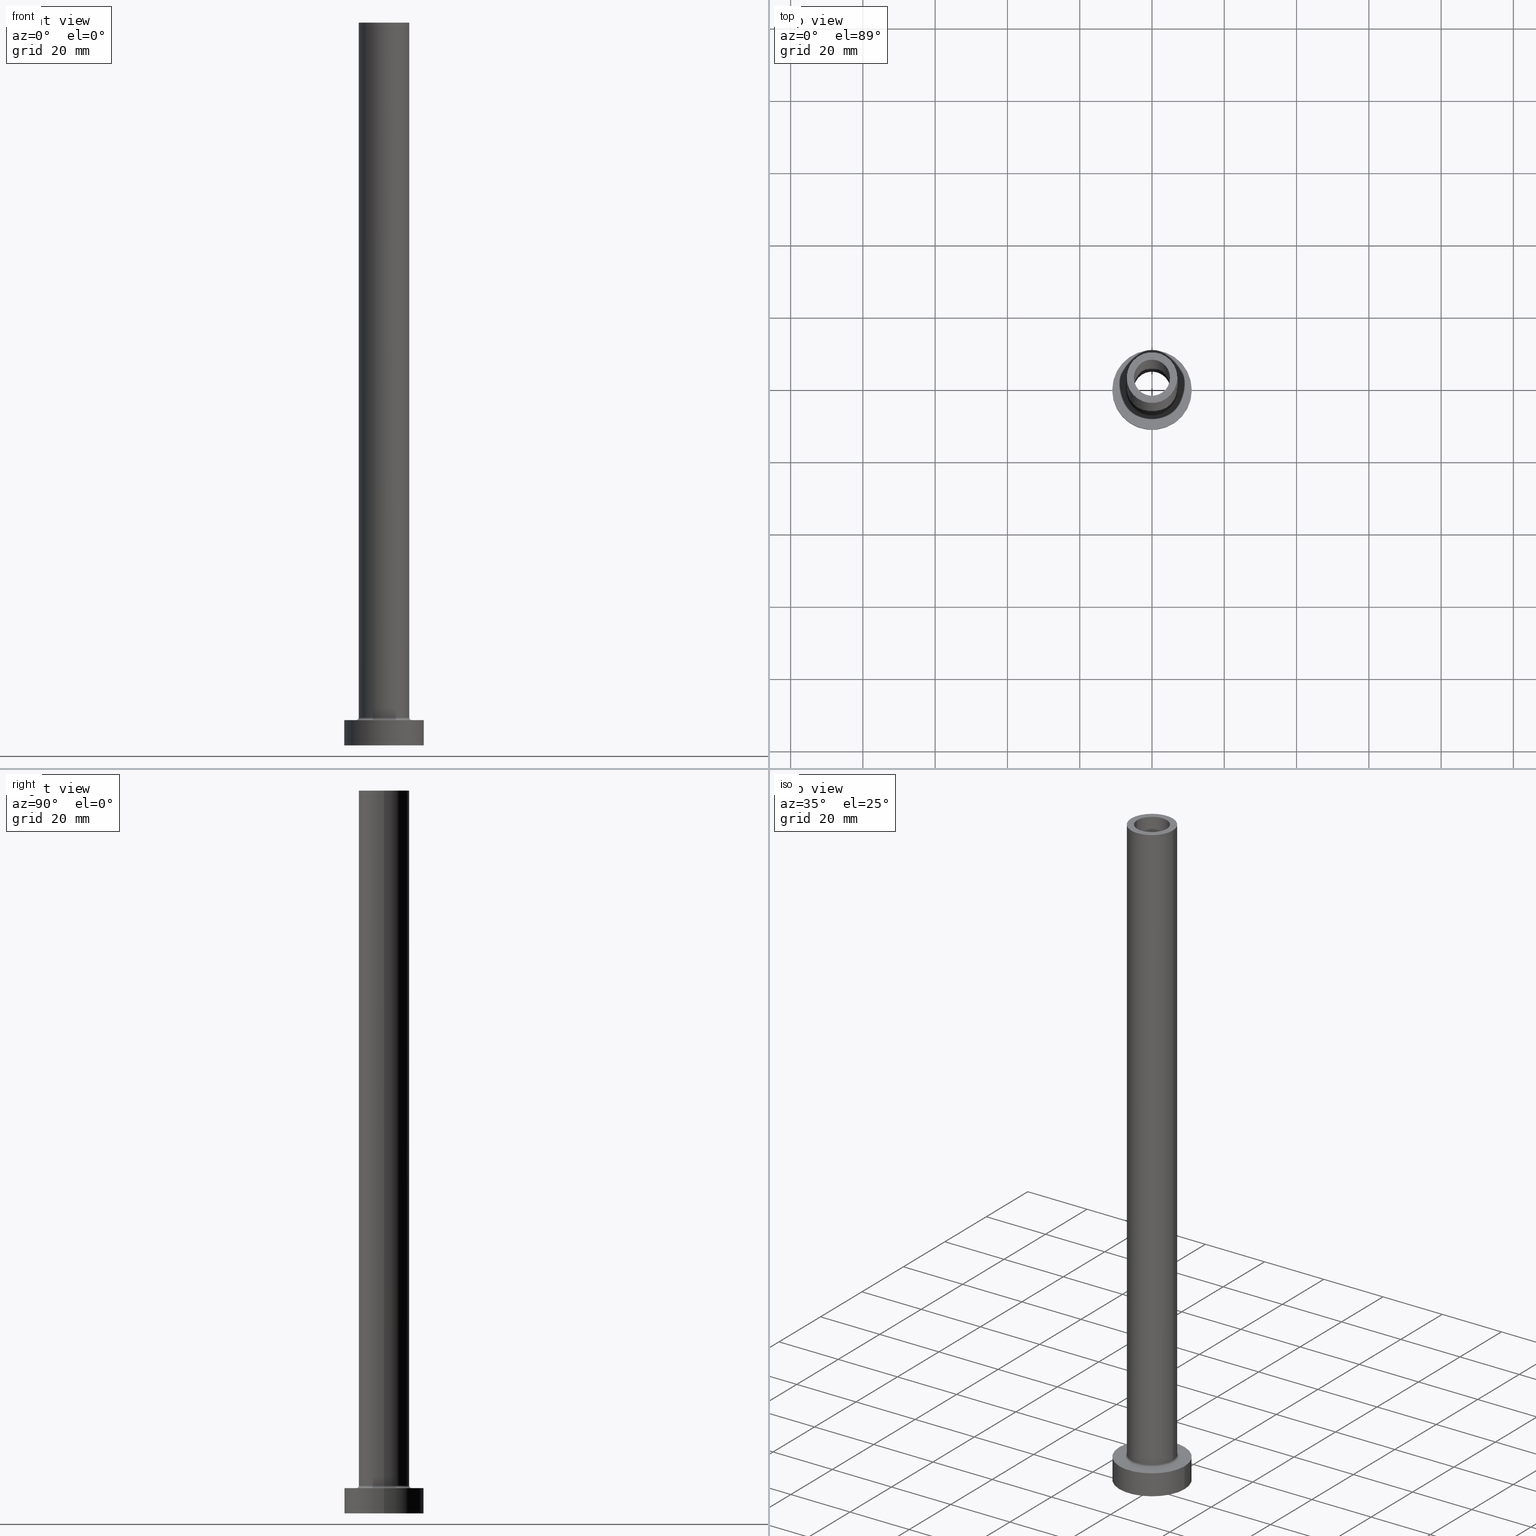
[diagram: canonical four-view strip — front | top / right | iso, engineering-drawing reading convention]
A machine part, canonical four-view strip (front | top / right | iso — engineering-drawing reading convention). The complete STEP part file that produces these views, byte-faithful:
ISO-10303-21;
HEADER;
FILE_DESCRIPTION (( 'STEP AP203' ),
    '1' );
FILE_NAME ('37e6.STEP',
    '2023-02-13T07:43:35',
    ( '' ),
    ( '' ),
    'SwSTEP 2.0',
    'SolidWorks 2019',
    '' );
FILE_SCHEMA (( 'CONFIG_CONTROL_DESIGN' ));
ENDSEC;

DATA;
#1 = CC_DESIGN_APPROVAL ( #280, ( #133 ) ) ;
#2 = CARTESIAN_POINT ( 'NONE',  ( -5.000000000000000000, 0.000000000000000000, 155.0000000000000284 ) ) ;
#3 = VERTEX_POINT ( 'NONE', #230 ) ;
#4 = DIRECTION ( 'NONE',  ( 0.000000000000000000, 0.000000000000000000, -1.000000000000000000 ) ) ;
#5 = VERTEX_POINT ( 'NONE', #276 ) ;
#6 = DIRECTION ( 'NONE',  ( -1.000000000000000000, 0.000000000000000000, 0.000000000000000000 ) ) ;
#7 = ORIENTED_EDGE ( 'NONE', *, *, #35, .T. ) ;
#8 = AXIS2_PLACEMENT_3D ( 'NONE', #14, #260, #446 ) ;
#9 = VERTEX_POINT ( 'NONE', #272 ) ;
#10 = CIRCLE ( 'NONE', #163, 11.00000000000000000 ) ;
#11 = DIRECTION ( 'NONE',  ( 1.000000000000000000, 0.000000000000000000, 0.000000000000000000 ) ) ;
#12 = DIRECTION ( 'NONE',  ( 1.224646799147353207E-16, 1.000000000000000000, -0.000000000000000000 ) ) ;
#13 = ADVANCED_FACE ( 'NONE', ( #86, #377 ), #87, .T. ) ;
#14 = CARTESIAN_POINT ( 'NONE',  ( 0.000000000000000000, 0.000000000000000000, 7.000000000000000000 ) ) ;
#15 = CARTESIAN_POINT ( 'NONE',  ( -5.150000000000001243, 0.000000000000000000, 155.0000000000000284 ) ) ;
#16 = AXIS2_PLACEMENT_3D ( 'NONE', #263, #78, #215 ) ;
#17 = CIRCLE ( 'NONE', #227, 5.150000000000001243 ) ;
#18 = VERTEX_POINT ( 'NONE', #232 ) ;
#19 = FACE_BOUND ( 'NONE', #244, .T. ) ;
#20 = EDGE_CURVE ( 'NONE', #337, #400, #21, .T. ) ;
#21 = LINE ( 'NONE', #312, #214 ) ;
#22 = DIRECTION ( 'NONE',  ( 1.000000000000000000, 0.000000000000000000, -0.000000000000000000 ) ) ;
#23 = CIRCLE ( 'NONE', #80, 0.7000000000000000666 ) ;
#24 = ORIENTED_EDGE ( 'NONE', *, *, #228, .T. ) ;
#25 = AXIS2_PLACEMENT_3D ( 'NONE', #150, #405, #307 ) ;
#26 = CARTESIAN_POINT ( 'NONE',  ( 5.000000000000000000, 6.123233995736765296E-16, 200.0000000000000000 ) ) ;
#27 = EDGE_CURVE ( 'NONE', #100, #3, #23, .T. ) ;
#28 = PERSON_AND_ORGANIZATION ( #248, #309 ) ;
#29 = ORIENTED_EDGE ( 'NONE', *, *, #188, .T. ) ;
#30 = DIRECTION ( 'NONE',  ( -0.000000000000000000, -0.000000000000000000, -1.000000000000000000 ) ) ;
#31 = VECTOR ( 'NONE', #204, 1000.000000000000000 ) ;
#32 = APPROVAL_ROLE ( '' ) ;
#33 = ORIENTED_EDGE ( 'NONE', *, *, #261, .T. ) ;
#34 = DIRECTION ( 'NONE',  ( 0.000000000000000000, 0.000000000000000000, -1.000000000000000000 ) ) ;
#35 = EDGE_CURVE ( 'NONE', #106, #18, #225, .T. ) ;
#36 = CALENDAR_DATE ( 2023, 13, 2 ) ;
#37 = DIRECTION ( 'NONE',  ( 1.000000000000000000, 0.000000000000000000, 0.000000000000000000 ) ) ;
#38 = COORDINATED_UNIVERSAL_TIME_OFFSET ( 1, 0, .AHEAD. ) ;
#39 = AXIS2_PLACEMENT_3D ( 'NONE', #388, #247, #4 ) ;
#40 = ORIENTED_EDGE ( 'NONE', *, *, #412, .F. ) ;
#41 = ORIENTED_EDGE ( 'NONE', *, *, #211, .F. ) ;
#42 = EDGE_LOOP ( 'NONE', ( #122, #198 ) ) ;
#43 = AXIS2_PLACEMENT_3D ( 'NONE', #311, #83, #340 ) ;
#44 = ADVANCED_FACE ( 'NONE', ( #369 ), #409, .T. ) ;
#45 = DIRECTION ( 'NONE',  ( 1.000000000000000000, 0.000000000000000000, 0.000000000000000000 ) ) ;
#46 = FACE_OUTER_BOUND ( 'NONE', #324, .T. ) ;
#47 = ORIENTED_EDGE ( 'NONE', *, *, #94, .F. ) ;
#48 = AXIS2_PLACEMENT_3D ( 'NONE', #242, #231, #197 ) ;
#49 = ORIENTED_EDGE ( 'NONE', *, *, #162, .T. ) ;
#50 = DIRECTION ( 'NONE',  ( 0.000000000000000000, 0.000000000000000000, 1.000000000000000000 ) ) ;
#51 = ORIENTED_EDGE ( 'NONE', *, *, #162, .F. ) ;
#52 =( NAMED_UNIT ( * ) SI_UNIT ( $, .STERADIAN. ) SOLID_ANGLE_UNIT ( ) );
#53 = EDGE_LOOP ( 'NONE', ( #51, #117 ) ) ;
#54 = CIRCLE ( 'NONE', #209, 7.000000000000000888 ) ;
#55 = DIRECTION ( 'NONE',  ( 1.000000000000000000, 0.000000000000000000, 0.000000000000000000 ) ) ;
#56 = PRODUCT_DEFINITION ( 'NEZN�M�', '', #133, #89 ) ;
#57 = FACE_OUTER_BOUND ( 'NONE', #216, .T. ) ;
#58 = UNCERTAINTY_MEASURE_WITH_UNIT (LENGTH_MEASURE( 1.000000000000000082E-05 ), #192, 'distance_accuracy_value', 'NONE');
#59 = ORIENTED_EDGE ( 'NONE', *, *, #63, .F. ) ;
#60 = AXIS2_PLACEMENT_3D ( 'NONE', #407, #76, #153 ) ;
#61 = DATE_AND_TIME ( #320, #401 ) ;
#62 = CARTESIAN_POINT ( 'NONE',  ( 0.000000000000000000, 0.000000000000000000, 0.000000000000000000 ) ) ;
#63 = EDGE_CURVE ( 'NONE', #385, #159, #317, .T. ) ;
#64 = AXIS2_PLACEMENT_3D ( 'NONE', #102, #267, #152 ) ;
#65 = CARTESIAN_POINT ( 'NONE',  ( 0.000000000000000000, 0.000000000000000000, 200.0000000000000000 ) ) ;
#66 = CALENDAR_DATE ( 2023, 13, 2 ) ;
#67 = ORIENTED_EDGE ( 'NONE', *, *, #348, .T. ) ;
#68 = DATE_TIME_ROLE ( 'classification_date' ) ;
#69 = LOCAL_TIME ( 8, 43, 35.00000000000000000, #266 ) ;
#70 = EDGE_CURVE ( 'NONE', #159, #385, #165, .T. ) ;
#71 = ORIENTED_EDGE ( 'NONE', *, *, #193, .F. ) ;
#72 = EDGE_LOOP ( 'NONE', ( #108, #41 ) ) ;
#73 = ORIENTED_EDGE ( 'NONE', *, *, #35, .F. ) ;
#74 = CARTESIAN_POINT ( 'NONE',  ( 0.000000000000000000, 0.000000000000000000, 7.700000000000012612 ) ) ;
#75 = CIRCLE ( 'NONE', #245, 5.150000000000001243 ) ;
#76 = DIRECTION ( 'NONE',  ( 0.000000000000000000, 0.000000000000000000, -1.000000000000000000 ) ) ;
#77 = DIRECTION ( 'NONE',  ( 1.000000000000000000, 0.000000000000000000, 0.000000000000000000 ) ) ;
#78 = DIRECTION ( 'NONE',  ( 0.000000000000000000, 0.000000000000000000, -1.000000000000000000 ) ) ;
#79 = PRODUCT_RELATED_PRODUCT_CATEGORY ( 'detail', '', ( #391 ) ) ;
#80 = AXIS2_PLACEMENT_3D ( 'NONE', #120, #12, #442 ) ;
#81 = DIRECTION ( 'NONE',  ( 1.000000000000000000, 0.000000000000000000, 0.000000000000000000 ) ) ;
#82 = ORIENTED_EDGE ( 'NONE', *, *, #88, .T. ) ;
#83 = DIRECTION ( 'NONE',  ( 0.000000000000000000, 0.000000000000000000, 1.000000000000000000 ) ) ;
#84 = CIRCLE ( 'NONE', #459, 5.000000000000000000 ) ;
#85 = CYLINDRICAL_SURFACE ( 'NONE', #111, 11.00000000000000000 ) ;
#86 = FACE_BOUND ( 'NONE', #241, .T. ) ;
#87 = PLANE ( 'NONE',  #306 ) ;
#88 = EDGE_CURVE ( 'NONE', #159, #249, #158, .T. ) ;
#89 = DESIGN_CONTEXT ( 'detailed design', #433, 'design' ) ;
#90 = APPLICATION_CONTEXT ( 'configuration controlled 3d designs of mechanical parts and assemblies' ) ;
#91 = DIRECTION ( 'NONE',  ( -0.000000000000000000, -0.000000000000000000, -1.000000000000000000 ) ) ;
#92 = VECTOR ( 'NONE', #297, 1000.000000000000000 ) ;
#93 = COORDINATED_UNIVERSAL_TIME_OFFSET ( 1, 0, .AHEAD. ) ;
#94 = EDGE_CURVE ( 'NONE', #126, #106, #414, .T. ) ;
#95 = DATE_AND_TIME ( #390, #283 ) ;
#96 = DIRECTION ( 'NONE',  ( 1.000000000000000000, 0.000000000000000000, 0.000000000000000000 ) ) ;
#97 = CYLINDRICAL_SURFACE ( 'NONE', #114, 5.150000000000001243 ) ;
#98 = CIRCLE ( 'NONE', #202, 5.000000000000000000 ) ;
#99 = CARTESIAN_POINT ( 'NONE',  ( 0.000000000000000000, 0.000000000000000000, 200.0000000000000000 ) ) ;
#100 = VERTEX_POINT ( 'NONE', #119 ) ;
#101 = APPROVAL_DATE_TIME ( #286, #299 ) ;
#102 = CARTESIAN_POINT ( 'NONE',  ( 0.000000000000000000, 0.000000000000000000, 0.000000000000000000 ) ) ;
#103 = EDGE_LOOP ( 'NONE', ( #257, #167, #82, #454 ) ) ;
#104 = AXIS2_PLACEMENT_3D ( 'NONE', #62, #341, #22 ) ;
#105 = CIRCLE ( 'NONE', #39, 0.7000000000000000666 ) ;
#106 = VERTEX_POINT ( 'NONE', #271 ) ;
#107 = DIRECTION ( 'NONE',  ( 1.000000000000000000, 0.000000000000000000, 0.000000000000000000 ) ) ;
#108 = ORIENTED_EDGE ( 'NONE', *, *, #269, .F. ) ;
#109 = ADVANCED_FACE ( 'NONE', ( #46 ), #85, .T. ) ;
#110 = FACE_OUTER_BOUND ( 'NONE', #103, .T. ) ;
#111 = AXIS2_PLACEMENT_3D ( 'NONE', #186, #371, #229 ) ;
#112 = DIRECTION ( 'NONE',  ( 0.000000000000000000, 0.000000000000000000, 1.000000000000000000 ) ) ;
#113 = CARTESIAN_POINT ( 'NONE',  ( 0.000000000000000000, 0.000000000000000000, 155.0000000000000284 ) ) ;
#114 = AXIS2_PLACEMENT_3D ( 'NONE', #355, #34, #6 ) ;
#115 = CARTESIAN_POINT ( 'NONE',  ( 0.000000000000000000, 0.000000000000000000, 7.000000000000000000 ) ) ;
#116 = DIRECTION ( 'NONE',  ( -1.000000000000000000, 0.000000000000000000, 0.000000000000000000 ) ) ;
#117 = ORIENTED_EDGE ( 'NONE', *, *, #188, .F. ) ;
#118 = ADVANCED_FACE ( 'NONE', ( #110 ), #258, .F. ) ;
#119 = CARTESIAN_POINT ( 'NONE',  ( -7.000000000000000888, 0.000000000000000000, 7.700000000000012612 ) ) ;
#120 = CARTESIAN_POINT ( 'NONE',  ( -7.700000000000001066, 9.429780353434621002E-16, 7.700000000000012612 ) ) ;
#121 = AXIS2_PLACEMENT_3D ( 'NONE', #99, #240, #175 ) ;
#122 = ORIENTED_EDGE ( 'NONE', *, *, #449, .F. ) ;
#123 = DIRECTION ( 'NONE',  ( -0.000000000000000000, -0.000000000000000000, -1.000000000000000000 ) ) ;
#124 = ADVANCED_FACE ( 'NONE', ( #221 ), #270, .F. ) ;
#125 = CARTESIAN_POINT ( 'NONE',  ( 5.150000000000001243, 6.306931015608869596E-16, 0.000000000000000000 ) ) ;
#126 = VERTEX_POINT ( 'NONE', #410 ) ;
#127 = AXIS2_PLACEMENT_3D ( 'NONE', #235, #275, #383 ) ;
#128 = CC_DESIGN_SECURITY_CLASSIFICATION ( #423, ( #133 ) ) ;
#129 = APPROVAL ( #243, 'NEUR�EN�' ) ;
#130 = APPLICATION_PROTOCOL_DEFINITION ( 'international standard', 'config_control_design', 1994, #433 ) ;
#131 = PERSON_AND_ORGANIZATION_ROLE ( 'design_supplier' ) ;
#132 = FACE_OUTER_BOUND ( 'NONE', #284, .T. ) ;
#133 = PRODUCT_DEFINITION_FORMATION_WITH_SPECIFIED_SOURCE ( 'LIBOVOLN�', '', #391, .NOT_KNOWN. ) ;
#134 = MECHANICAL_CONTEXT ( 'NONE', #90, 'mechanical' ) ;
#135 = VERTEX_POINT ( 'NONE', #455 ) ;
#136 = ADVANCED_BREP_SHAPE_REPRESENTATION ( '37e6', ( #265, #219 ), #182 ) ;
#137 = EDGE_CURVE ( 'NONE', #126, #135, #160, .T. ) ;
#138 = CARTESIAN_POINT ( 'NONE',  ( -5.150000000000001243, 0.000000000000000000, 169.5663996924429284 ) ) ;
#139 = VERTEX_POINT ( 'NONE', #314 ) ;
#140 = CARTESIAN_POINT ( 'NONE',  ( 0.000000000000000000, 0.000000000000000000, 155.0000000000000284 ) ) ;
#141 = AXIS2_PLACEMENT_3D ( 'NONE', #190, #112, #305 ) ;
#142 = CARTESIAN_POINT ( 'NONE',  ( 7.700000000000001066, 0.000000000000000000, 7.000000000000006217 ) ) ;
#143 = ORIENTED_EDGE ( 'NONE', *, *, #316, .F. ) ;
#144 = APPROVAL_ROLE ( '' ) ;
#145 = CIRCLE ( 'NONE', #64, 11.00000000000000000 ) ;
#146 = ADVANCED_FACE ( 'NONE', ( #457 ), #285, .T. ) ;
#147 = DIRECTION ( 'NONE',  ( -0.000000000000000000, -0.000000000000000000, -1.000000000000000000 ) ) ;
#148 = ORIENTED_EDGE ( 'NONE', *, *, #70, .F. ) ;
#149 = CALENDAR_DATE ( 2023, 13, 2 ) ;
#150 = CARTESIAN_POINT ( 'NONE',  ( 0.000000000000000000, 0.000000000000000000, 7.700000000000012612 ) ) ;
#151 = DIRECTION ( 'NONE',  ( -0.000000000000000000, -0.000000000000000000, -1.000000000000000000 ) ) ;
#152 = DIRECTION ( 'NONE',  ( 1.000000000000000000, 0.000000000000000000, 0.000000000000000000 ) ) ;
#153 = DIRECTION ( 'NONE',  ( -1.000000000000000000, 0.000000000000000000, 0.000000000000000000 ) ) ;
#154 = DIRECTION ( 'NONE',  ( 1.000000000000000000, 0.000000000000000000, -0.000000000000000000 ) ) ;
#155 = CC_DESIGN_APPROVAL ( #299, ( #56 ) ) ;
#156 = ADVANCED_FACE ( 'NONE', ( #57 ), #424, .F. ) ;
#157 = ORIENTED_EDGE ( 'NONE', *, *, #137, .T. ) ;
#158 = LINE ( 'NONE', #441, #195 ) ;
#159 = VERTEX_POINT ( 'NONE', #238 ) ;
#160 = LINE ( 'NONE', #279, #200 ) ;
#161 = EDGE_LOOP ( 'NONE', ( #415, #417, #24, #40 ) ) ;
#162 = EDGE_CURVE ( 'NONE', #9, #400, #398, .T. ) ;
#163 = AXIS2_PLACEMENT_3D ( 'NONE', #365, #334, #11 ) ;
#164 = CC_DESIGN_PERSON_AND_ORGANIZATION_ASSIGNMENT ( #346, #393, ( #133 ) ) ;
#165 = CIRCLE ( 'NONE', #141, 5.000000000000000000 ) ;
#166 = PERSON_AND_ORGANIZATION ( #248, #309 ) ;
#167 = ORIENTED_EDGE ( 'NONE', *, *, #63, .T. ) ;
#168 = DIRECTION ( 'NONE',  ( 1.000000000000000000, 0.000000000000000000, 0.000000000000000000 ) ) ;
#169 = CIRCLE ( 'NONE', #351, 7.700000000000001066 ) ;
#170 = DIRECTION ( 'NONE',  ( 0.000000000000000000, 0.000000000000000000, 1.000000000000000000 ) ) ;
#171 = DIRECTION ( 'NONE',  ( 0.000000000000000000, 0.000000000000000000, 1.000000000000000000 ) ) ;
#172 = CLOSED_SHELL ( 'NONE', ( #333, #205, #124, #146, #109, #44, #403, #173, #222, #13, #379, #156, #319, #118 ) ) ;
#173 = ADVANCED_FACE ( 'NONE', ( #287, #426 ), #389, .F. ) ;
#174 = EDGE_LOOP ( 'NONE', ( #255, #252 ) ) ;
#175 = DIRECTION ( 'NONE',  ( -1.000000000000000000, 0.000000000000000000, 0.000000000000000000 ) ) ;
#176 = ORIENTED_EDGE ( 'NONE', *, *, #449, .T. ) ;
#177 = DIRECTION ( 'NONE',  ( -0.000000000000000000, -0.000000000000000000, -1.000000000000000000 ) ) ;
#178 = ORIENTED_EDGE ( 'NONE', *, *, #394, .F. ) ;
#179 = EDGE_CURVE ( 'NONE', #402, #139, #435, .T. ) ;
#180 = CARTESIAN_POINT ( 'NONE',  ( 5.150000000000001243, 6.306931015608869596E-16, 155.0000000000000284 ) ) ;
#181 = ORIENTED_EDGE ( 'NONE', *, *, #412, .T. ) ;
#182 =( GEOMETRIC_REPRESENTATION_CONTEXT ( 3 ) GLOBAL_UNCERTAINTY_ASSIGNED_CONTEXT ( ( #58 ) ) GLOBAL_UNIT_ASSIGNED_CONTEXT ( ( #192, #448, #52 ) ) REPRESENTATION_CONTEXT ( 'NONE', 'WORKASPACE' ) );
#183 = CYLINDRICAL_SURFACE ( 'NONE', #16, 5.000000000000000000 ) ;
#184 = DIRECTION ( 'NONE',  ( 0.000000000000000000, 0.000000000000000000, 1.000000000000000000 ) ) ;
#185 = DIRECTION ( 'NONE',  ( 0.000000000000000000, 0.000000000000000000, 1.000000000000000000 ) ) ;
#186 = CARTESIAN_POINT ( 'NONE',  ( 0.000000000000000000, 0.000000000000000000, 7.000000000000000000 ) ) ;
#187 = AXIS2_PLACEMENT_3D ( 'NONE', #115, #151, #116 ) ;
#188 = EDGE_CURVE ( 'NONE', #400, #9, #17, .T. ) ;
#189 = ORIENTED_EDGE ( 'NONE', *, *, #211, .T. ) ;
#190 = CARTESIAN_POINT ( 'NONE',  ( 0.000000000000000000, 0.000000000000000000, 200.0000000000000000 ) ) ;
#191 = ORIENTED_EDGE ( 'NONE', *, *, #137, .F. ) ;
#192 =( LENGTH_UNIT ( ) NAMED_UNIT ( * ) SI_UNIT ( .MILLI., .METRE. ) );
#193 = EDGE_CURVE ( 'NONE', #139, #100, #256, .T. ) ;
#194 = CARTESIAN_POINT ( 'NONE',  ( 0.000000000000000000, 0.000000000000000000, 200.0000000000000000 ) ) ;
#195 = VECTOR ( 'NONE', #224, 1000.000000000000000 ) ;
#196 = APPROVAL_PERSON_ORGANIZATION ( #461, #280, #32 ) ;
#197 = DIRECTION ( 'NONE',  ( -1.000000000000000000, 0.000000000000000000, 0.000000000000000000 ) ) ;
#198 = ORIENTED_EDGE ( 'NONE', *, *, #261, .F. ) ;
#199 = EDGE_CURVE ( 'NONE', #385, #5, #428, .T. ) ;
#200 = VECTOR ( 'NONE', #91, 1000.000000000000000 ) ;
#201 = CARTESIAN_POINT ( 'NONE',  ( 5.000000000000000000, 6.123233995736765296E-16, 200.0000000000000000 ) ) ;
#202 = AXIS2_PLACEMENT_3D ( 'NONE', #113, #185, #443 ) ;
#203 = CARTESIAN_POINT ( 'NONE',  ( 0.000000000000000000, 0.000000000000000000, 0.000000000000000000 ) ) ;
#204 = DIRECTION ( 'NONE',  ( 0.000000000000000000, 0.000000000000000000, -1.000000000000000000 ) ) ;
#205 = ADVANCED_FACE ( 'NONE', ( #353 ), #97, .F. ) ;
#206 = PERSON_AND_ORGANIZATION ( #248, #309 ) ;
#207 = DIRECTION ( 'NONE',  ( 1.000000000000000000, 0.000000000000000000, 0.000000000000000000 ) ) ;
#208 = ORIENTED_EDGE ( 'NONE', *, *, #344, .T. ) ;
#209 = AXIS2_PLACEMENT_3D ( 'NONE', #281, #453, #452 ) ;
#210 = EDGE_LOOP ( 'NONE', ( #178, #326, #226, #406 ) ) ;
#211 = EDGE_CURVE ( 'NONE', #337, #310, #318, .T. ) ;
#212 = LINE ( 'NONE', #362, #359 ) ;
#213 = ORIENTED_EDGE ( 'NONE', *, *, #316, .T. ) ;
#214 = VECTOR ( 'NONE', #447, 1000.000000000000000 ) ;
#215 = DIRECTION ( 'NONE',  ( -1.000000000000000000, 0.000000000000000000, 0.000000000000000000 ) ) ;
#216 = EDGE_LOOP ( 'NONE', ( #329, #189, #315, #49 ) ) ;
#217 = CARTESIAN_POINT ( 'NONE',  ( 0.000000000000000000, 0.000000000000000000, 200.0000000000000000 ) ) ;
#218 = SHAPE_DEFINITION_REPRESENTATION ( #264, #136 ) ;
#219 = AXIS2_PLACEMENT_3D ( 'NONE', #203, #170, #207 ) ;
#220 = DIRECTION ( 'NONE',  ( 0.000000000000000000, 0.000000000000000000, 1.000000000000000000 ) ) ;
#221 = FACE_OUTER_BOUND ( 'NONE', #210, .T. ) ;
#222 = ADVANCED_FACE ( 'NONE', ( #132 ), #290, .T. ) ;
#223 = FACE_BOUND ( 'NONE', #380, .T. ) ;
#224 = DIRECTION ( 'NONE',  ( 0.000000000000000000, 0.000000000000000000, -1.000000000000000000 ) ) ;
#225 = LINE ( 'NONE', #295, #421 ) ;
#226 = ORIENTED_EDGE ( 'NONE', *, *, #236, .F. ) ;
#227 = AXIS2_PLACEMENT_3D ( 'NONE', #294, #177, #107 ) ;
#228 = EDGE_CURVE ( 'NONE', #363, #339, #105, .T. ) ;
#229 = DIRECTION ( 'NONE',  ( -1.000000000000000000, 0.000000000000000000, 0.000000000000000000 ) ) ;
#230 = CARTESIAN_POINT ( 'NONE',  ( -7.700000000000001066, 9.429780353434621002E-16, 7.000000000000006217 ) ) ;
#231 = DIRECTION ( 'NONE',  ( 0.000000000000000000, 0.000000000000000000, -1.000000000000000000 ) ) ;
#232 = CARTESIAN_POINT ( 'NONE',  ( -11.00000000000000000, 0.000000000000000000, 0.000000000000000000 ) ) ;
#233 = FACE_OUTER_BOUND ( 'NONE', #161, .T. ) ;
#234 = CIRCLE ( 'NONE', #25, 7.000000000000000888 ) ;
#235 = CARTESIAN_POINT ( 'NONE',  ( 0.000000000000000000, 0.000000000000000000, 200.0000000000000000 ) ) ;
#236 = EDGE_CURVE ( 'NONE', #339, #3, #169, .T. ) ;
#237 = ORIENTED_EDGE ( 'NONE', *, *, #199, .T. ) ;
#238 = CARTESIAN_POINT ( 'NONE',  ( -5.000000000000000000, 0.000000000000000000, 200.0000000000000000 ) ) ;
#239 = APPROVAL_STATUS ( 'not_yet_approved' ) ;
#240 = DIRECTION ( 'NONE',  ( -0.000000000000000000, -0.000000000000000000, -1.000000000000000000 ) ) ;
#241 = EDGE_LOOP ( 'NONE', ( #148, #59 ) ) ;
#242 = CARTESIAN_POINT ( 'NONE',  ( 0.000000000000000000, 0.000000000000000000, 169.5663996924429284 ) ) ;
#243 = APPROVAL_STATUS ( 'not_yet_approved' ) ;
#244 = EDGE_LOOP ( 'NONE', ( #440, #181 ) ) ;
#245 = AXIS2_PLACEMENT_3D ( 'NONE', #368, #220, #45 ) ;
#246 = CC_DESIGN_PERSON_AND_ORGANIZATION_ASSIGNMENT ( #250, #354, ( #391 ) ) ;
#247 = DIRECTION ( 'NONE',  ( 0.000000000000000000, -1.000000000000000000, 0.000000000000000000 ) ) ;
#248 = PERSON ( 'NEUR�EN�', 'NEUR�EN�', 'NEUR�EN�', ('NEUR�EN�'), ('NEUR�EN�'), ('NEUR�EN�') ) ;
#249 = VERTEX_POINT ( 'NONE', #2 ) ;
#250 = PERSON_AND_ORGANIZATION ( #248, #309 ) ;
#251 = EDGE_CURVE ( 'NONE', #310, #9, #399, .T. ) ;
#252 = ORIENTED_EDGE ( 'NONE', *, *, #94, .T. ) ;
#253 = AXIS2_PLACEMENT_3D ( 'NONE', #384, #278, #55 ) ;
#254 = CARTESIAN_POINT ( 'NONE',  ( 0.000000000000000000, 0.000000000000000000, 155.0000000000000284 ) ) ;
#255 = ORIENTED_EDGE ( 'NONE', *, *, #364, .T. ) ;
#256 = LINE ( 'NONE', #327, #332 ) ;
#257 = ORIENTED_EDGE ( 'NONE', *, *, #199, .F. ) ;
#258 = CYLINDRICAL_SURFACE ( 'NONE', #60, 5.000000000000000000 ) ;
#259 = DIRECTION ( 'NONE',  ( 1.000000000000000000, 0.000000000000000000, 0.000000000000000000 ) ) ;
#260 = DIRECTION ( 'NONE',  ( 0.000000000000000000, 0.000000000000000000, 1.000000000000000000 ) ) ;
#261 = EDGE_CURVE ( 'NONE', #135, #18, #145, .T. ) ;
#262 = AXIS2_PLACEMENT_3D ( 'NONE', #456, #123, #274 ) ;
#263 = CARTESIAN_POINT ( 'NONE',  ( 0.000000000000000000, 0.000000000000000000, 200.0000000000000000 ) ) ;
#264 = PRODUCT_DEFINITION_SHAPE ( 'NONE', 'NONE',  #56 ) ;
#265 = MANIFOLD_SOLID_BREP ( 'Odebrat vysunut�m4', #172 ) ;
#266 = COORDINATED_UNIVERSAL_TIME_OFFSET ( 1, 0, .AHEAD. ) ;
#267 = DIRECTION ( 'NONE',  ( 0.000000000000000000, 0.000000000000000000, 1.000000000000000000 ) ) ;
#268 = ORIENTED_EDGE ( 'NONE', *, *, #88, .F. ) ;
#269 = EDGE_CURVE ( 'NONE', #310, #337, #75, .T. ) ;
#270 = TOROIDAL_SURFACE ( 'NONE', #308, 7.700000000000001066, 0.6999999999999999556 ) ;
#271 = CARTESIAN_POINT ( 'NONE',  ( -11.00000000000000000, 0.000000000000000000, 7.000000000000000000 ) ) ;
#272 = CARTESIAN_POINT ( 'NONE',  ( -5.150000000000001243, 0.000000000000000000, 0.000000000000000000 ) ) ;
#273 = CIRCLE ( 'NONE', #450, 11.00000000000000000 ) ;
#274 = DIRECTION ( 'NONE',  ( 1.000000000000000000, 0.000000000000000000, 0.000000000000000000 ) ) ;
#275 = DIRECTION ( 'NONE',  ( -0.000000000000000000, -0.000000000000000000, -1.000000000000000000 ) ) ;
#276 = CARTESIAN_POINT ( 'NONE',  ( 5.000000000000000000, 6.123233995736765296E-16, 155.0000000000000284 ) ) ;
#277 = FACE_OUTER_BOUND ( 'NONE', #174, .T. ) ;
#278 = DIRECTION ( 'NONE',  ( 0.000000000000000000, 0.000000000000000000, 1.000000000000000000 ) ) ;
#279 = CARTESIAN_POINT ( 'NONE',  ( 11.00000000000000000, 1.347111479062088405E-15, 7.000000000000000000 ) ) ;
#280 = APPROVAL ( #239, 'NEUR�EN�' ) ;
#281 = CARTESIAN_POINT ( 'NONE',  ( 0.000000000000000000, 0.000000000000000000, 7.700000000000012612 ) ) ;
#282 = APPROVAL_PERSON_ORGANIZATION ( #166, #129, #144 ) ;
#283 = LOCAL_TIME ( 8, 43, 35.00000000000000000, #427 ) ;
#284 = EDGE_LOOP ( 'NONE', ( #360, #304, #372, #436 ) ) ;
#285 = CYLINDRICAL_SURFACE ( 'NONE', #127, 7.000000000000000888 ) ;
#286 = DATE_AND_TIME ( #36, #291 ) ;
#287 = FACE_BOUND ( 'NONE', #53, .T. ) ;
#288 = PERSON_AND_ORGANIZATION ( #248, #309 ) ;
#289 = EDGE_CURVE ( 'NONE', #363, #100, #234, .T. ) ;
#290 = CYLINDRICAL_SURFACE ( 'NONE', #121, 7.000000000000000888 ) ;
#291 = LOCAL_TIME ( 8, 43, 35.00000000000000000, #38 ) ;
#292 = SECURITY_CLASSIFICATION_LEVEL ( 'unclassified' ) ;
#293 = ORIENTED_EDGE ( 'NONE', *, *, #70, .T. ) ;
#294 = CARTESIAN_POINT ( 'NONE',  ( 0.000000000000000000, 0.000000000000000000, 0.000000000000000000 ) ) ;
#295 = CARTESIAN_POINT ( 'NONE',  ( -11.00000000000000000, 0.000000000000000000, 7.000000000000000000 ) ) ;
#296 = APPLICATION_PROTOCOL_DEFINITION ( 'international standard', 'config_control_design', 1994, #90 ) ;
#297 = DIRECTION ( 'NONE',  ( 0.000000000000000000, 0.000000000000000000, -1.000000000000000000 ) ) ;
#298 = ORIENTED_EDGE ( 'NONE', *, *, #20, .T. ) ;
#299 = APPROVAL ( #395, 'NEUR�EN�' ) ;
#300 = CARTESIAN_POINT ( 'NONE',  ( 0.000000000000000000, 0.000000000000000000, 155.0000000000000284 ) ) ;
#301 = ORIENTED_EDGE ( 'NONE', *, *, #179, .T. ) ;
#302 = AXIS2_PLACEMENT_3D ( 'NONE', #300, #338, #154 ) ;
#303 = CARTESIAN_POINT ( 'NONE',  ( 7.000000000000000888, 8.572527594031474176E-16, 7.700000000000012612 ) ) ;
#304 = ORIENTED_EDGE ( 'NONE', *, *, #430, .F. ) ;
#305 = DIRECTION ( 'NONE',  ( 1.000000000000000000, 0.000000000000000000, 0.000000000000000000 ) ) ;
#306 = AXIS2_PLACEMENT_3D ( 'NONE', #194, #451, #419 ) ;
#307 = DIRECTION ( 'NONE',  ( 1.000000000000000000, 0.000000000000000000, 0.000000000000000000 ) ) ;
#308 = AXIS2_PLACEMENT_3D ( 'NONE', #74, #184, #77 ) ;
#309 = ORGANIZATION ( 'NEUR�EN�', 'NEUR�EN�', '' ) ;
#310 = VERTEX_POINT ( 'NONE', #15 ) ;
#311 = CARTESIAN_POINT ( 'NONE',  ( 0.000000000000000000, 0.000000000000000000, 7.000000000000000000 ) ) ;
#312 = CARTESIAN_POINT ( 'NONE',  ( 5.150000000000001243, 6.306931015608869596E-16, 169.5663996924429284 ) ) ;
#313 = CARTESIAN_POINT ( 'NONE',  ( 7.000000000000000888, 8.572527594031474176E-16, 200.0000000000000000 ) ) ;
#314 = CARTESIAN_POINT ( 'NONE',  ( -7.000000000000000888, 0.000000000000000000, 200.0000000000000000 ) ) ;
#315 = ORIENTED_EDGE ( 'NONE', *, *, #251, .T. ) ;
#316 = EDGE_CURVE ( 'NONE', #249, #5, #98, .T. ) ;
#317 = CIRCLE ( 'NONE', #322, 5.000000000000000000 ) ;
#318 = CIRCLE ( 'NONE', #374, 5.150000000000001243 ) ;
#319 = ADVANCED_FACE ( 'NONE', ( #223, #370 ), #335, .F. ) ;
#320 = CALENDAR_DATE ( 2023, 13, 2 ) ;
#321 = DIRECTION ( 'NONE',  ( 0.000000000000000000, 0.000000000000000000, 1.000000000000000000 ) ) ;
#322 = AXIS2_PLACEMENT_3D ( 'NONE', #217, #413, #81 ) ;
#323 = CARTESIAN_POINT ( 'NONE',  ( 0.000000000000000000, 0.000000000000000000, 7.000000000000000000 ) ) ;
#324 = EDGE_LOOP ( 'NONE', ( #47, #157, #33, #73 ) ) ;
#325 = CIRCLE ( 'NONE', #366, 7.000000000000000888 ) ;
#326 = ORIENTED_EDGE ( 'NONE', *, *, #27, .T. ) ;
#327 = CARTESIAN_POINT ( 'NONE',  ( -7.000000000000000888, 0.000000000000000000, 200.0000000000000000 ) ) ;
#328 = CC_DESIGN_PERSON_AND_ORGANIZATION_ASSIGNMENT ( #288, #131, ( #133 ) ) ;
#329 = ORIENTED_EDGE ( 'NONE', *, *, #20, .F. ) ;
#330 = DIRECTION ( 'NONE',  ( 0.000000000000000000, 0.000000000000000000, 1.000000000000000000 ) ) ;
#331 = ORIENTED_EDGE ( 'NONE', *, *, #269, .T. ) ;
#332 = VECTOR ( 'NONE', #404, 1000.000000000000000 ) ;
#333 = ADVANCED_FACE ( 'NONE', ( #439 ), #183, .F. ) ;
#334 = DIRECTION ( 'NONE',  ( 0.000000000000000000, 0.000000000000000000, 1.000000000000000000 ) ) ;
#335 = PLANE ( 'NONE',  #302 ) ;
#336 = CC_DESIGN_APPROVAL ( #129, ( #423 ) ) ;
#337 = VERTEX_POINT ( 'NONE', #180 ) ;
#338 = DIRECTION ( 'NONE',  ( 0.000000000000000000, 0.000000000000000000, 1.000000000000000000 ) ) ;
#339 = VERTEX_POINT ( 'NONE', #142 ) ;
#340 = DIRECTION ( 'NONE',  ( 1.000000000000000000, 0.000000000000000000, -0.000000000000000000 ) ) ;
#341 = DIRECTION ( 'NONE',  ( 0.000000000000000000, 0.000000000000000000, 1.000000000000000000 ) ) ;
#342 = ORIENTED_EDGE ( 'NONE', *, *, #430, .T. ) ;
#343 = TOROIDAL_SURFACE ( 'NONE', #253, 7.700000000000001066, 0.6999999999999999556 ) ;
#344 = EDGE_CURVE ( 'NONE', #5, #249, #84, .T. ) ;
#345 = CARTESIAN_POINT ( 'NONE',  ( 0.000000000000000000, 0.000000000000000000, 200.0000000000000000 ) ) ;
#346 = PERSON_AND_ORGANIZATION ( #248, #309 ) ;
#347 = ORIENTED_EDGE ( 'NONE', *, *, #289, .T. ) ;
#348 = EDGE_CURVE ( 'NONE', #402, #363, #212, .T. ) ;
#349 = APPROVAL_DATE_TIME ( #429, #280 ) ;
#350 = AXIS2_PLACEMENT_3D ( 'NONE', #386, #30, #168 ) ;
#351 = AXIS2_PLACEMENT_3D ( 'NONE', #323, #352, #96 ) ;
#352 = DIRECTION ( 'NONE',  ( -0.000000000000000000, -0.000000000000000000, -1.000000000000000000 ) ) ;
#353 = FACE_OUTER_BOUND ( 'NONE', #392, .T. ) ;
#354 = PERSON_AND_ORGANIZATION_ROLE ( 'design_owner' ) ;
#355 = CARTESIAN_POINT ( 'NONE',  ( 0.000000000000000000, 0.000000000000000000, 169.5663996924429284 ) ) ;
#356 = PERSON_AND_ORGANIZATION_ROLE ( 'classification_officer' ) ;
#357 = CC_DESIGN_DATE_AND_TIME_ASSIGNMENT ( #61, #387, ( #56 ) ) ;
#358 = ORIENTED_EDGE ( 'NONE', *, *, #251, .F. ) ;
#359 = VECTOR ( 'NONE', #147, 1000.000000000000000 ) ;
#360 = ORIENTED_EDGE ( 'NONE', *, *, #348, .F. ) ;
#361 = DATE_AND_TIME ( #149, #69 ) ;
#362 = CARTESIAN_POINT ( 'NONE',  ( 7.000000000000000888, 8.572527594031474176E-16, 200.0000000000000000 ) ) ;
#363 = VERTEX_POINT ( 'NONE', #303 ) ;
#364 = EDGE_CURVE ( 'NONE', #106, #126, #10, .T. ) ;
#365 = CARTESIAN_POINT ( 'NONE',  ( 0.000000000000000000, 0.000000000000000000, 7.000000000000000000 ) ) ;
#366 = AXIS2_PLACEMENT_3D ( 'NONE', #345, #418, #378 ) ;
#367 = DIRECTION ( 'NONE',  ( -0.000000000000000000, -0.000000000000000000, -1.000000000000000000 ) ) ;
#368 = CARTESIAN_POINT ( 'NONE',  ( 0.000000000000000000, 0.000000000000000000, 155.0000000000000284 ) ) ;
#369 = FACE_OUTER_BOUND ( 'NONE', #434, .T. ) ;
#370 = FACE_OUTER_BOUND ( 'NONE', #72, .T. ) ;
#371 = DIRECTION ( 'NONE',  ( -0.000000000000000000, -0.000000000000000000, -1.000000000000000000 ) ) ;
#372 = ORIENTED_EDGE ( 'NONE', *, *, #193, .T. ) ;
#373 = CC_DESIGN_DATE_AND_TIME_ASSIGNMENT ( #95, #68, ( #423 ) ) ;
#374 = AXIS2_PLACEMENT_3D ( 'NONE', #140, #171, #37 ) ;
#375 = EDGE_LOOP ( 'NONE', ( #342, #301 ) ) ;
#376 = CARTESIAN_POINT ( 'NONE',  ( 0.000000000000000000, 0.000000000000000000, 0.000000000000000000 ) ) ;
#377 = FACE_OUTER_BOUND ( 'NONE', #375, .T. ) ;
#378 = DIRECTION ( 'NONE',  ( 1.000000000000000000, 0.000000000000000000, 0.000000000000000000 ) ) ;
#379 = ADVANCED_FACE ( 'NONE', ( #233 ), #343, .F. ) ;
#380 = EDGE_LOOP ( 'NONE', ( #213, #208 ) ) ;
#381 = DIRECTION ( 'NONE',  ( 1.000000000000000000, 0.000000000000000000, 0.000000000000000000 ) ) ;
#382 = CIRCLE ( 'NONE', #262, 7.700000000000001066 ) ;
#383 = DIRECTION ( 'NONE',  ( -1.000000000000000000, 0.000000000000000000, 0.000000000000000000 ) ) ;
#384 = CARTESIAN_POINT ( 'NONE',  ( 0.000000000000000000, 0.000000000000000000, 7.700000000000012612 ) ) ;
#385 = VERTEX_POINT ( 'NONE', #26 ) ;
#386 = CARTESIAN_POINT ( 'NONE',  ( 0.000000000000000000, 0.000000000000000000, 0.000000000000000000 ) ) ;
#387 = DATE_TIME_ROLE ( 'creation_date' ) ;
#388 = CARTESIAN_POINT ( 'NONE',  ( 7.700000000000001066, 0.000000000000000000, 7.700000000000012612 ) ) ;
#389 = PLANE ( 'NONE',  #104 ) ;
#390 = CALENDAR_DATE ( 2023, 13, 2 ) ;
#391 = PRODUCT ( '37e6', '37e6', '', ( #134 ) ) ;
#392 = EDGE_LOOP ( 'NONE', ( #331, #298, #29, #358 ) ) ;
#393 = PERSON_AND_ORGANIZATION_ROLE ( 'creator' ) ;
#394 = EDGE_CURVE ( 'NONE', #100, #363, #54, .T. ) ;
#395 = APPROVAL_STATUS ( 'not_yet_approved' ) ;
#396 = EDGE_LOOP ( 'NONE', ( #431, #67, #347, #71 ) ) ;
#397 = COORDINATED_UNIVERSAL_TIME_OFFSET ( 1, 0, .AHEAD. ) ;
#398 = CIRCLE ( 'NONE', #350, 5.150000000000001243 ) ;
#399 = LINE ( 'NONE', #138, #92 ) ;
#400 = VERTEX_POINT ( 'NONE', #125 ) ;
#401 = LOCAL_TIME ( 8, 43, 35.00000000000000000, #93 ) ;
#402 = VERTEX_POINT ( 'NONE', #313 ) ;
#403 = ADVANCED_FACE ( 'NONE', ( #19, #277 ), #420, .T. ) ;
#404 = DIRECTION ( 'NONE',  ( -0.000000000000000000, -0.000000000000000000, -1.000000000000000000 ) ) ;
#405 = DIRECTION ( 'NONE',  ( 0.000000000000000000, 0.000000000000000000, 1.000000000000000000 ) ) ;
#406 = ORIENTED_EDGE ( 'NONE', *, *, #228, .F. ) ;
#407 = CARTESIAN_POINT ( 'NONE',  ( 0.000000000000000000, 0.000000000000000000, 200.0000000000000000 ) ) ;
#408 = APPROVAL_PERSON_ORGANIZATION ( #28, #299, #432 ) ;
#409 = CYLINDRICAL_SURFACE ( 'NONE', #187, 11.00000000000000000 ) ;
#410 = CARTESIAN_POINT ( 'NONE',  ( 11.00000000000000000, 1.347111479062088405E-15, 7.000000000000000000 ) ) ;
#411 = APPROVAL_DATE_TIME ( #361, #129 ) ;
#412 = EDGE_CURVE ( 'NONE', #3, #339, #382, .T. ) ;
#413 = DIRECTION ( 'NONE',  ( 0.000000000000000000, 0.000000000000000000, 1.000000000000000000 ) ) ;
#414 = CIRCLE ( 'NONE', #8, 11.00000000000000000 ) ;
#415 = ORIENTED_EDGE ( 'NONE', *, *, #27, .F. ) ;
#416 = AXIS2_PLACEMENT_3D ( 'NONE', #65, #321, #438 ) ;
#417 = ORIENTED_EDGE ( 'NONE', *, *, #289, .F. ) ;
#418 = DIRECTION ( 'NONE',  ( 0.000000000000000000, 0.000000000000000000, 1.000000000000000000 ) ) ;
#419 = DIRECTION ( 'NONE',  ( 1.000000000000000000, 0.000000000000000000, -0.000000000000000000 ) ) ;
#420 = PLANE ( 'NONE',  #43 ) ;
#421 = VECTOR ( 'NONE', #367, 1000.000000000000000 ) ;
#422 = EDGE_LOOP ( 'NONE', ( #293, #237, #143, #268 ) ) ;
#423 = SECURITY_CLASSIFICATION ( '', '', #292 ) ;
#424 = CYLINDRICAL_SURFACE ( 'NONE', #48, 5.150000000000001243 ) ;
#425 = PERSON_AND_ORGANIZATION_ROLE ( 'creator' ) ;
#426 = FACE_OUTER_BOUND ( 'NONE', #42, .T. ) ;
#427 = COORDINATED_UNIVERSAL_TIME_OFFSET ( 1, 0, .AHEAD. ) ;
#428 = LINE ( 'NONE', #201, #31 ) ;
#429 = DATE_AND_TIME ( #66, #437 ) ;
#430 = EDGE_CURVE ( 'NONE', #139, #402, #325, .T. ) ;
#431 = ORIENTED_EDGE ( 'NONE', *, *, #179, .F. ) ;
#432 = APPROVAL_ROLE ( '' ) ;
#433 = APPLICATION_CONTEXT ( 'configuration controlled 3d designs of mechanical parts and assemblies' ) ;
#434 = EDGE_LOOP ( 'NONE', ( #191, #445, #7, #176 ) ) ;
#435 = CIRCLE ( 'NONE', #416, 7.000000000000000888 ) ;
#436 = ORIENTED_EDGE ( 'NONE', *, *, #394, .T. ) ;
#437 = LOCAL_TIME ( 8, 43, 35.00000000000000000, #397 ) ;
#438 = DIRECTION ( 'NONE',  ( 1.000000000000000000, 0.000000000000000000, 0.000000000000000000 ) ) ;
#439 = FACE_OUTER_BOUND ( 'NONE', #422, .T. ) ;
#440 = ORIENTED_EDGE ( 'NONE', *, *, #236, .T. ) ;
#441 = CARTESIAN_POINT ( 'NONE',  ( -5.000000000000000000, 0.000000000000000000, 200.0000000000000000 ) ) ;
#442 = DIRECTION ( 'NONE',  ( -1.000000000000000000, 1.224646799147351975E-16, 0.000000000000000000 ) ) ;
#443 = DIRECTION ( 'NONE',  ( 1.000000000000000000, 0.000000000000000000, 0.000000000000000000 ) ) ;
#444 = CC_DESIGN_PERSON_AND_ORGANIZATION_ASSIGNMENT ( #460, #425, ( #56 ) ) ;
#445 = ORIENTED_EDGE ( 'NONE', *, *, #364, .F. ) ;
#446 = DIRECTION ( 'NONE',  ( 1.000000000000000000, 0.000000000000000000, 0.000000000000000000 ) ) ;
#447 = DIRECTION ( 'NONE',  ( 0.000000000000000000, 0.000000000000000000, -1.000000000000000000 ) ) ;
#448 =( NAMED_UNIT ( * ) PLANE_ANGLE_UNIT ( ) SI_UNIT ( $, .RADIAN. ) );
#449 = EDGE_CURVE ( 'NONE', #18, #135, #273, .T. ) ;
#450 = AXIS2_PLACEMENT_3D ( 'NONE', #376, #50, #381 ) ;
#451 = DIRECTION ( 'NONE',  ( 0.000000000000000000, 0.000000000000000000, 1.000000000000000000 ) ) ;
#452 = DIRECTION ( 'NONE',  ( 1.000000000000000000, 0.000000000000000000, 0.000000000000000000 ) ) ;
#453 = DIRECTION ( 'NONE',  ( 0.000000000000000000, 0.000000000000000000, 1.000000000000000000 ) ) ;
#454 = ORIENTED_EDGE ( 'NONE', *, *, #344, .F. ) ;
#455 = CARTESIAN_POINT ( 'NONE',  ( 11.00000000000000000, 1.347111479062088405E-15, 0.000000000000000000 ) ) ;
#456 = CARTESIAN_POINT ( 'NONE',  ( 0.000000000000000000, 0.000000000000000000, 7.000000000000000000 ) ) ;
#457 = FACE_OUTER_BOUND ( 'NONE', #396, .T. ) ;
#458 = CC_DESIGN_PERSON_AND_ORGANIZATION_ASSIGNMENT ( #206, #356, ( #423 ) ) ;
#459 = AXIS2_PLACEMENT_3D ( 'NONE', #254, #330, #259 ) ;
#460 = PERSON_AND_ORGANIZATION ( #248, #309 ) ;
#461 = PERSON_AND_ORGANIZATION ( #248, #309 ) ;
ENDSEC;
END-ISO-10303-21;
